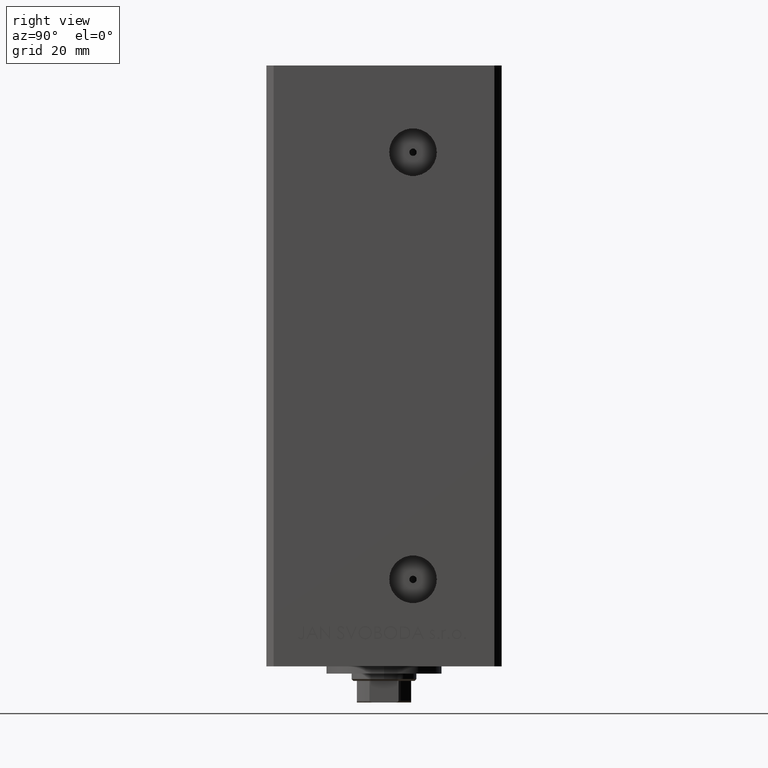
[diagram: clean part render]
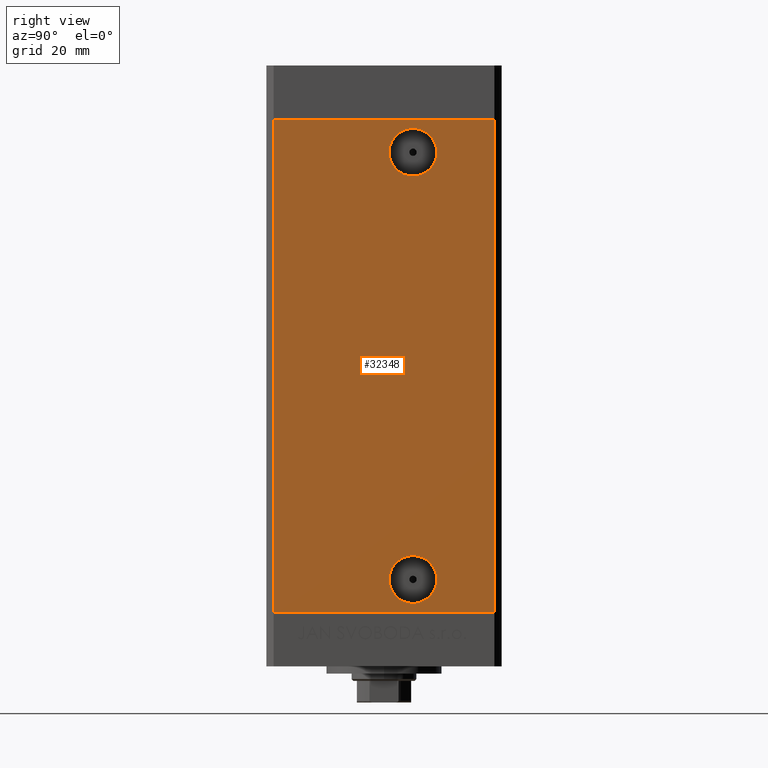
[diagram: same view with one face highlighted and labeled with its STEP entity id]
A machine part, right view. The second image highlights one B-rep face of the part: STEP entity #32348.
In plain terms, the highlighted planar face has unit normal (1, -0, 0).
Its self-contained STEP definition (entity closure, byte-faithful):
#21 = ORIENTED_EDGE ( 'NONE', *, *, #32602, .F. ) ;
#2038 = EDGE_CURVE ( 'NONE', #42298, #5557, #46427, .T. ) ;
#2373 = EDGE_LOOP ( 'NONE', ( #41654, #26133 ) ) ;
#5557 = VERTEX_POINT ( 'NONE', #7133 ) ;
#5704 = DIRECTION ( 'NONE',  ( 0.000000000000000000, 1.000000000000000000, 0.000000000000000000 ) ) ;
#5825 = AXIS2_PLACEMENT_3D ( 'NONE', #16684, #23932, #5704 ) ;
#6517 = EDGE_CURVE ( 'NONE', #37602, #44972, #14809, .T. ) ;
#6587 = ORIENTED_EDGE ( 'NONE', *, *, #2038, .F. ) ;
#7133 = CARTESIAN_POINT ( 'NONE',  ( 37.50000000000000000, 1.419999999999989049, 127.0000000000000000 ) ) ;
#7593 = CARTESIAN_POINT ( 'NONE',  ( 37.50000000000000000, 14.57999999999999829, 8.999999999999994671 ) ) ;
#8340 = AXIS2_PLACEMENT_3D ( 'NONE', #42300, #8619, #11392 ) ;
#8495 = DIRECTION ( 'NONE',  ( -2.275047181608927644E-16, -1.000000000000000000, 0.000000000000000000 ) ) ;
#8619 = DIRECTION ( 'NONE',  ( 1.000000000000000000, -2.275047181608927644E-16, 0.000000000000000000 ) ) ;
#9234 = DIRECTION ( 'NONE',  ( 2.275047181608927644E-16, 1.000000000000000000, 0.000000000000000000 ) ) ;
#10024 = CARTESIAN_POINT ( 'NONE',  ( 37.49999999999999289, -30.50000000000000000, 0.000000000000000000 ) ) ;
#10221 = FACE_OUTER_BOUND ( 'NONE', #35607, .T. ) ;
#10583 = EDGE_CURVE ( 'NONE', #37602, #43917, #23971, .T. ) ;
#11392 = DIRECTION ( 'NONE',  ( 0.000000000000000000, 1.000000000000000000, 0.000000000000000000 ) ) ;
#12075 = EDGE_CURVE ( 'NONE', #43917, #14141, #32821, .T. ) ;
#12973 = FACE_BOUND ( 'NONE', #2373, .T. ) ;
#14141 = VERTEX_POINT ( 'NONE', #10024 ) ;
#14809 = LINE ( 'NONE', #30037, #31469 ) ;
#16474 = CARTESIAN_POINT ( 'NONE',  ( 37.50000000000000711, 30.50000000000000000, 136.0000000000000000 ) ) ;
#16684 = CARTESIAN_POINT ( 'NONE',  ( 37.50000000000000000, 7.999999999999991118, 127.0000000000000000 ) ) ;
#17435 = CARTESIAN_POINT ( 'NONE',  ( 37.49999999999999289, -30.50000000000000000, 136.0000000000000000 ) ) ;
#17689 = CARTESIAN_POINT ( 'NONE',  ( 37.50000000000000000, 1.419999999999985496, 8.999999999999994671 ) ) ;
#19304 = CARTESIAN_POINT ( 'NONE',  ( 37.50000000000000000, 7.999999999999991118, 8.999999999999994671 ) ) ;
#20730 = CIRCLE ( 'NONE', #23145, 6.580000000000006288 ) ;
#21109 = AXIS2_PLACEMENT_3D ( 'NONE', #40630, #21703, #9234 ) ;
#21703 = DIRECTION ( 'NONE',  ( 1.000000000000000000, -2.275047181608927644E-16, 0.000000000000000000 ) ) ;
#23145 = AXIS2_PLACEMENT_3D ( 'NONE', #19304, #34522, #27296 ) ;
#23932 = DIRECTION ( 'NONE',  ( 1.000000000000000000, -2.275047181608927644E-16, 0.000000000000000000 ) ) ;
#23971 = LINE ( 'NONE', #16474, #38793 ) ;
#24527 = ORIENTED_EDGE ( 'NONE', *, *, #12075, .T. ) ;
#25036 = LINE ( 'NONE', #40225, #48973 ) ;
#25171 = DIRECTION ( 'NONE',  ( 1.000000000000000000, -2.275047181608927644E-16, 0.000000000000000000 ) ) ;
#25443 = PLANE ( 'NONE',  #21109 ) ;
#26105 = VERTEX_POINT ( 'NONE', #17689 ) ;
#26133 = ORIENTED_EDGE ( 'NONE', *, *, #47050, .F. ) ;
#27296 = DIRECTION ( 'NONE',  ( 0.000000000000000000, 1.000000000000000000, 0.000000000000000000 ) ) ;
#27709 = VECTOR ( 'NONE', #48238, 1000.000000000000000 ) ;
#27844 = ORIENTED_EDGE ( 'NONE', *, *, #36817, .F. ) ;
#28984 = AXIS2_PLACEMENT_3D ( 'NONE', #33139, #25171, #47331 ) ;
#30037 = CARTESIAN_POINT ( 'NONE',  ( 37.50000000000000711, 30.50000000000000000, 136.0000000000000000 ) ) ;
#30732 = EDGE_CURVE ( 'NONE', #35819, #26105, #44897, .T. ) ;
#31469 = VECTOR ( 'NONE', #41494, 1000.000000000000000 ) ;
#32348 = ADVANCED_FACE ( 'NONE', ( #12973, #44372, #10221 ), #25443, .T. ) ;
#32602 = EDGE_CURVE ( 'NONE', #5557, #42298, #33855, .T. ) ;
#32821 = LINE ( 'NONE', #40046, #27709 ) ;
#33139 = CARTESIAN_POINT ( 'NONE',  ( 37.50000000000000000, 7.999999999999991118, 8.999999999999994671 ) ) ;
#33157 = EDGE_LOOP ( 'NONE', ( #6587, #21 ) ) ;
#33855 = CIRCLE ( 'NONE', #8340, 6.580000000000002736 ) ;
#33971 = ORIENTED_EDGE ( 'NONE', *, *, #10583, .T. ) ;
#34522 = DIRECTION ( 'NONE',  ( 1.000000000000000000, -2.275047181608927644E-16, 0.000000000000000000 ) ) ;
#35435 = CARTESIAN_POINT ( 'NONE',  ( 37.50000000000000711, 30.50000000000000000, 0.000000000000000000 ) ) ;
#35607 = EDGE_LOOP ( 'NONE', ( #27844, #39287, #33971, #24527 ) ) ;
#35819 = VERTEX_POINT ( 'NONE', #7593 ) ;
#36817 = EDGE_CURVE ( 'NONE', #44972, #14141, #25036, .T. ) ;
#37602 = VERTEX_POINT ( 'NONE', #47637 ) ;
#38793 = VECTOR ( 'NONE', #8495, 1000.000000000000000 ) ;
#39217 = CARTESIAN_POINT ( 'NONE',  ( 37.50000000000000000, 14.57999999999999474, 127.0000000000000000 ) ) ;
#39287 = ORIENTED_EDGE ( 'NONE', *, *, #6517, .F. ) ;
#40046 = CARTESIAN_POINT ( 'NONE',  ( 37.49999999999999289, -30.50000000000000000, 136.0000000000000000 ) ) ;
#40225 = CARTESIAN_POINT ( 'NONE',  ( 37.50000000000000711, 30.50000000000000000, 0.000000000000000000 ) ) ;
#40630 = CARTESIAN_POINT ( 'NONE',  ( 37.50000000000000711, 30.50000000000000000, 136.0000000000000000 ) ) ;
#41494 = DIRECTION ( 'NONE',  ( -0.000000000000000000, -0.000000000000000000, -1.000000000000000000 ) ) ;
#41654 = ORIENTED_EDGE ( 'NONE', *, *, #30732, .F. ) ;
#42298 = VERTEX_POINT ( 'NONE', #39217 ) ;
#42300 = CARTESIAN_POINT ( 'NONE',  ( 37.50000000000000000, 7.999999999999991118, 127.0000000000000000 ) ) ;
#43917 = VERTEX_POINT ( 'NONE', #17435 ) ;
#44372 = FACE_BOUND ( 'NONE', #33157, .T. ) ;
#44897 = CIRCLE ( 'NONE', #28984, 6.580000000000006288 ) ;
#44972 = VERTEX_POINT ( 'NONE', #35435 ) ;
#46427 = CIRCLE ( 'NONE', #5825, 6.580000000000002736 ) ;
#46954 = DIRECTION ( 'NONE',  ( -2.275047181608927644E-16, -1.000000000000000000, 0.000000000000000000 ) ) ;
#47050 = EDGE_CURVE ( 'NONE', #26105, #35819, #20730, .T. ) ;
#47331 = DIRECTION ( 'NONE',  ( 0.000000000000000000, 1.000000000000000000, 0.000000000000000000 ) ) ;
#47637 = CARTESIAN_POINT ( 'NONE',  ( 37.50000000000000711, 30.50000000000000000, 136.0000000000000000 ) ) ;
#48238 = DIRECTION ( 'NONE',  ( -0.000000000000000000, -0.000000000000000000, -1.000000000000000000 ) ) ;
#48973 = VECTOR ( 'NONE', #46954, 1000.000000000000000 ) ;